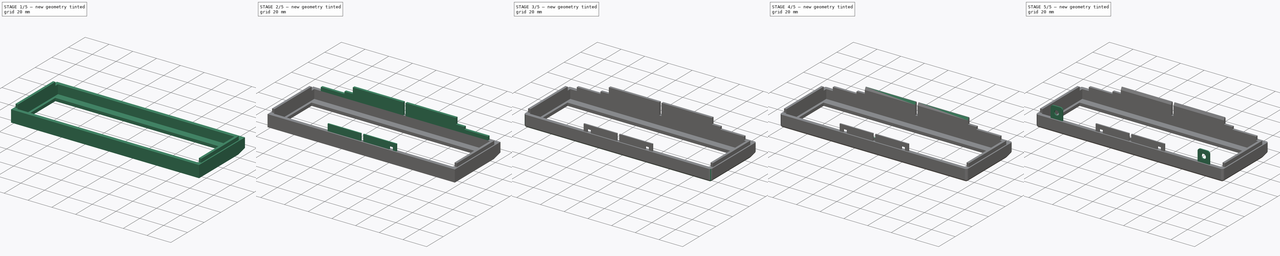
[diagram: build sequence overview — one tinted view per stage of 5, left to right]
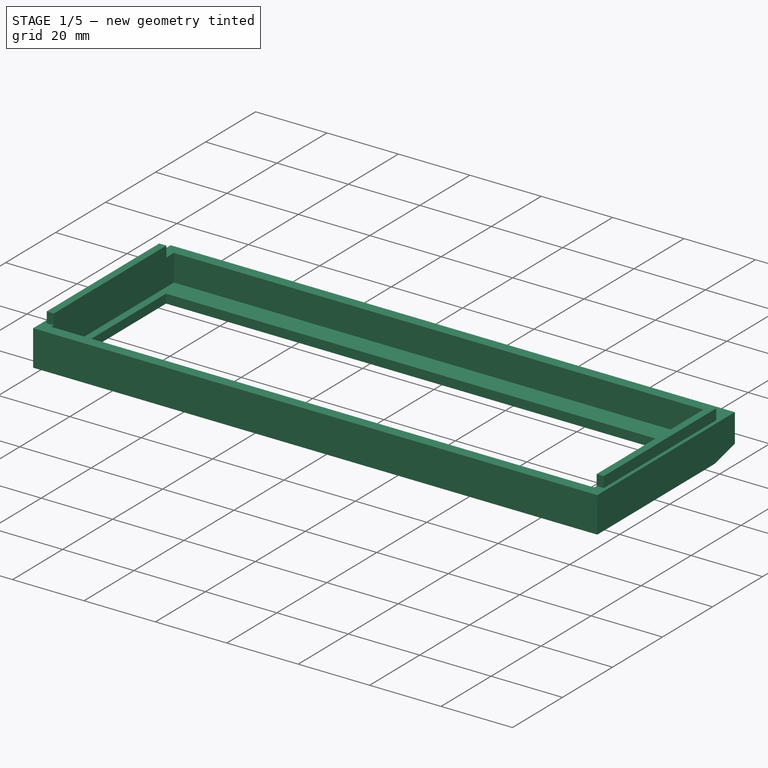
[diagram: stage 1 of 5 — iso view after this stage's code; geometry added in this stage tinted green]
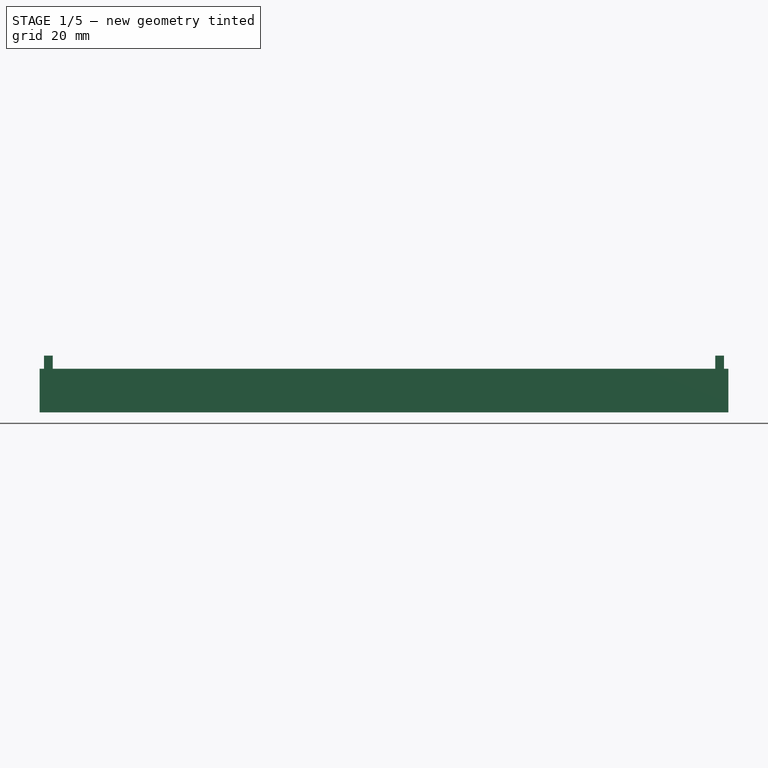
[diagram: stage 1 of 5 — front view after this stage's code; geometry added in this stage tinted green]
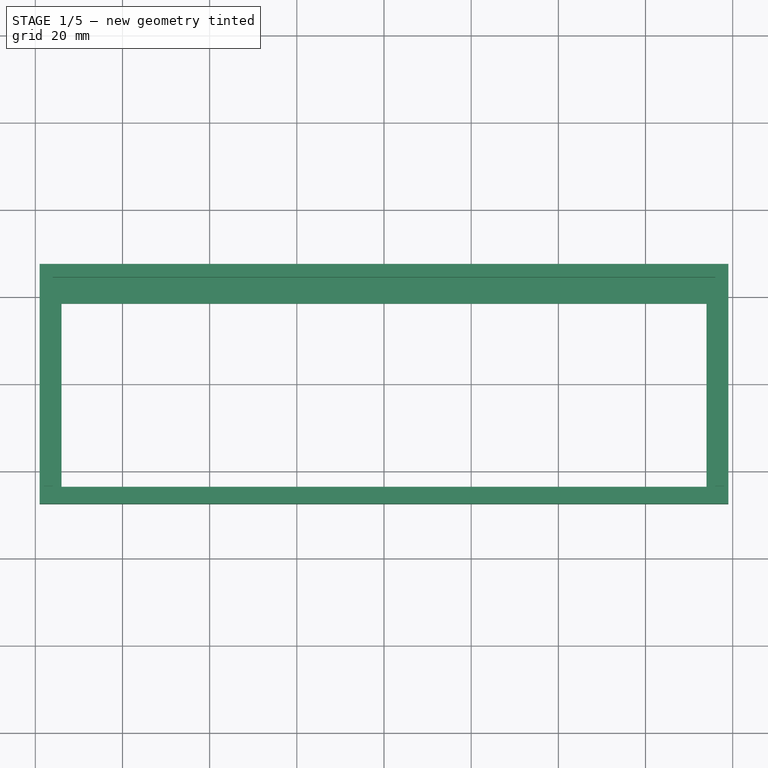
[diagram: stage 1 of 5 — top view after this stage's code; geometry added in this stage tinted green]
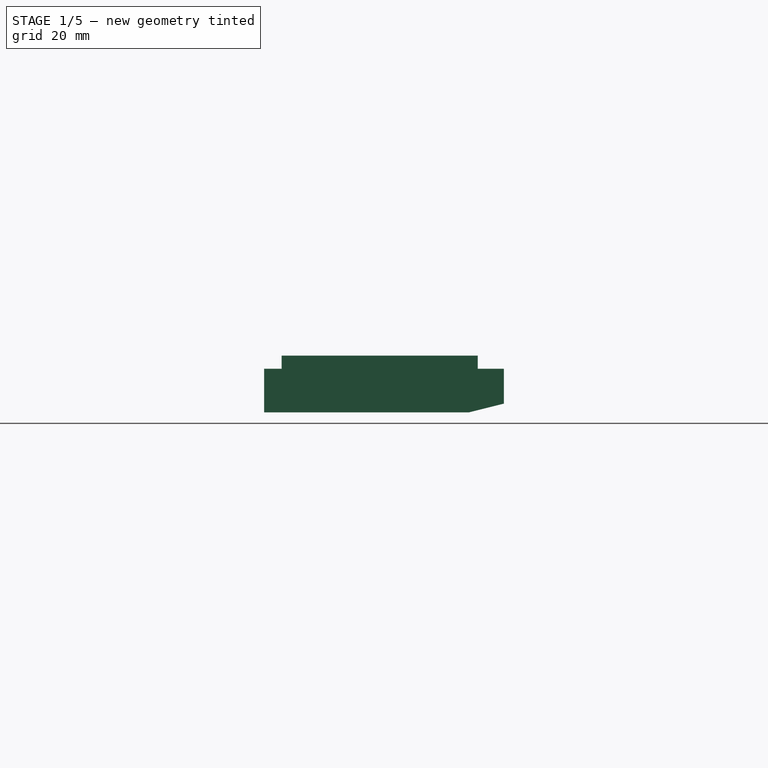
[diagram: stage 1 of 5 — right view after this stage's code; geometry added in this stage tinted green]
FCSTD DOCUMENT  (FreeCAD 1.0R39319 (Git))
Label: AppleCD 600E Bezel
License: All rights reserved
LicenseURL: http://en.wikipedia.org/wiki/All_rights_reserved
objects: PartDesign::AdditiveBox×9, PartDesign::Fillet×6, PartDesign::SubtractiveBox×5, PartDesign::SubtractiveWedge×5, PartDesign::AdditiveWedge×2, PartDesign::SubtractiveCylinder×2, Sketcher::SketchObject×1, PartDesign::Pad×1, PartDesign::Body×1
note: 93 computed .brp shape members not serialized (recipe doc carries the construction recipe); baked Part::Feature solids carry a one-line shape summary decoded from their .brp

FEATURE [Sketcher::SketchObject] Sketch
  ArcFitTolerance = 1e-06
  AttachmentSupport = -> [XY_Plane]
  FullyConstrained = true
  MakeInternals = false
  MapMode = 5
  sketch-geometry (5):
    g0: LineSegment StartX=-79 StartY=-27.5 StartZ=0 EndX=79 EndY=-27.5 EndZ=0
    g1: LineSegment StartX=79 StartY=-27.5 StartZ=0 EndX=79 EndY=27.5 EndZ=0
    g2: LineSegment StartX=79 StartY=27.5 StartZ=0 EndX=-79 EndY=27.5 EndZ=0
    g3: LineSegment StartX=-79 StartY=27.5 StartZ=0 EndX=-79 EndY=-27.5 EndZ=0
    g4: GeomPoint [constr] X=0 Y=0 Z=0
  constraints (12):
    c: Coincident(g0,g1)
    c: Coincident(g1,g2)
    c: Coincident(g2,g3)
    c: Coincident(g3,g0)
    c: Horizontal(g0)
    c: Horizontal(g2)
    c: Vertical(g1)
    c: Vertical(g3)
    c: Symmetric(g2,g0,g4)
    c: Distance(g1,g3) = 158
    c: Distance(g0,g2) = 55
    c: Coincident(g4,g-1)
FEATURE [PartDesign::Pad] Pad
  Direction = (0,0,1)
  Length = 10
  Length2 = 10
  Profile = -> Sketch
  ReferenceAxis = -> Sketch [N_Axis]
  Suppressed = false
  Type = 0
FEATURE [PartDesign::SubtractiveBox] Box
  AttacherType = Attacher::AttachEngine3D
  AttachmentOffset = pos=(-74,-23.5,-10) rot=(0,0,1;0rad)
  AttachmentSupport = -> [Pad]
  BaseFeature = -> Pad
  Height = 10
  Length = 148
  MapMode = 5
  Placement = pos=(-74,-23.5,0) rot=(0,0,1;0rad)
  Suppressed = false
  Width = 42
FEATURE [PartDesign::SubtractiveWedge] Wedge
  AttacherType = Attacher::AttachEngine3D
  AttachmentOffset = pos=(-5,43,-20) rot=(0,0,1;0rad)
  AttachmentSupport = -> [Box]
  BaseFeature = -> Box
  MapMode = 5
  Placement = pos=(-79,19.5,-10) rot=(0,0,1;0rad)
  Suppressed = false
  X2max = 158
  X2min = 0
  Xmax = 158
  Xmin = 0
  Ymax = 8
  Ymin = 0
  Z2max = 12
  Z2min = -2
  Zmax = 10
  Zmin = 0
FEATURE [PartDesign::SubtractiveBox] Box001
  AttacherType = Attacher::AttachEngine3D
  AttachmentOffset = pos=(3,-44,-7.5) rot=(0,0,1;0rad)
  AttachmentSupport = -> [Wedge]
  BaseFeature = -> Wedge
  Height = 10
  Length = 152
  MapMode = 5
  Placement = pos=(-76,-24.5,2.5) rot=(0,0,1;0rad)
  Suppressed = false
  Width = 49
FEATURE [PartDesign::AdditiveBox] Box002
  AttacherType = Attacher::AttachEngine3D
  AttachmentOffset = pos=(-2,1,0) rot=(0,0,1;0rad)
  AttachmentSupport = -> [Box001]
  BaseFeature = -> Box001
  Height = 3
  Length = 2
  MapMode = 5
  Placement = pos=(-78,-23.5,10) rot=(0,0,1;0rad)
  Suppressed = false
  Width = 45
FEATURE [PartDesign::AdditiveBox] Box003
  AttacherType = Attacher::AttachEngine3D
  AttachmentOffset = pos=(154,0,0) rot=(0,0,1;0rad)
  AttachmentSupport = -> [Box002]
  BaseFeature = -> Box002
  Height = 3
  Length = 2
  MapMode = 5
  Placement = pos=(76,-23.5,10) rot=(0,0,1;0rad)
  Suppressed = false
  Width = 45
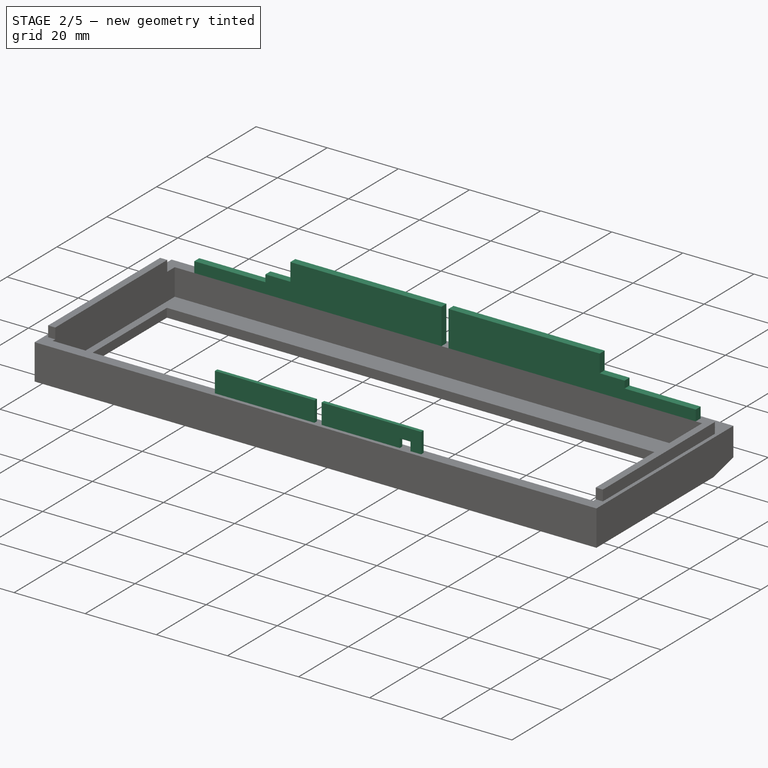
[diagram: stage 2 of 5 — iso view after this stage's code; geometry added in this stage tinted green]
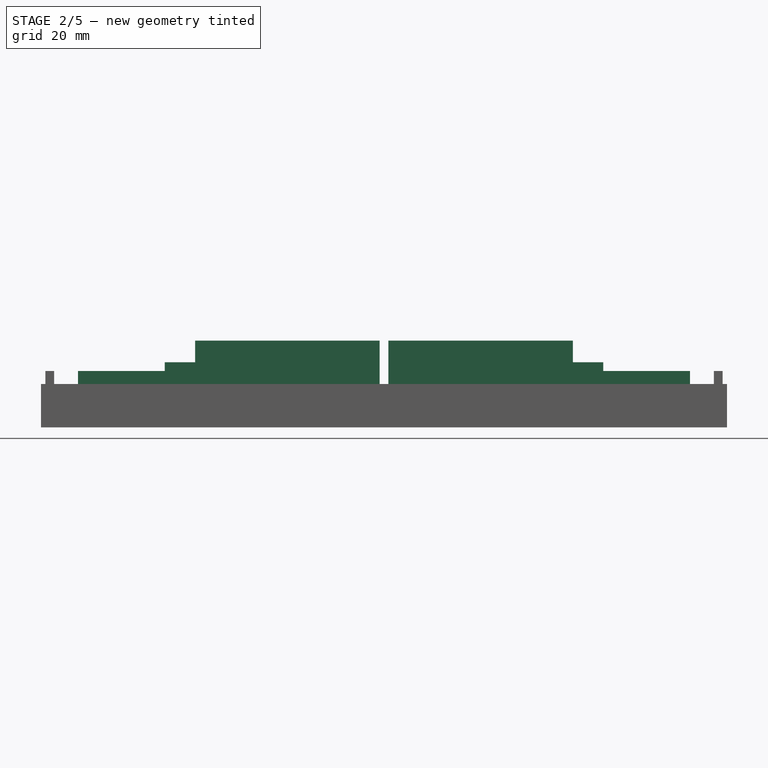
[diagram: stage 2 of 5 — front view after this stage's code; geometry added in this stage tinted green]
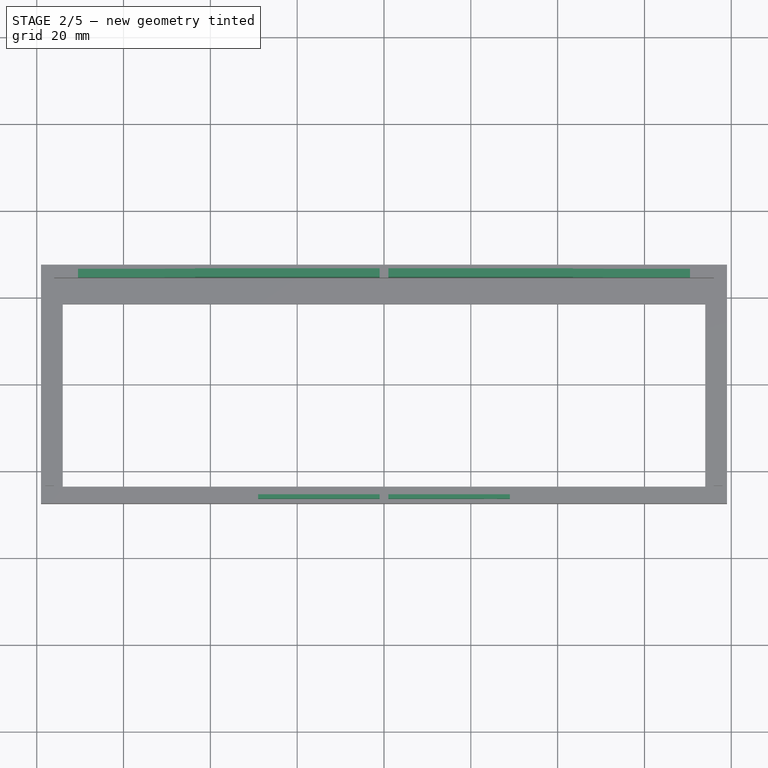
[diagram: stage 2 of 5 — top view after this stage's code; geometry added in this stage tinted green]
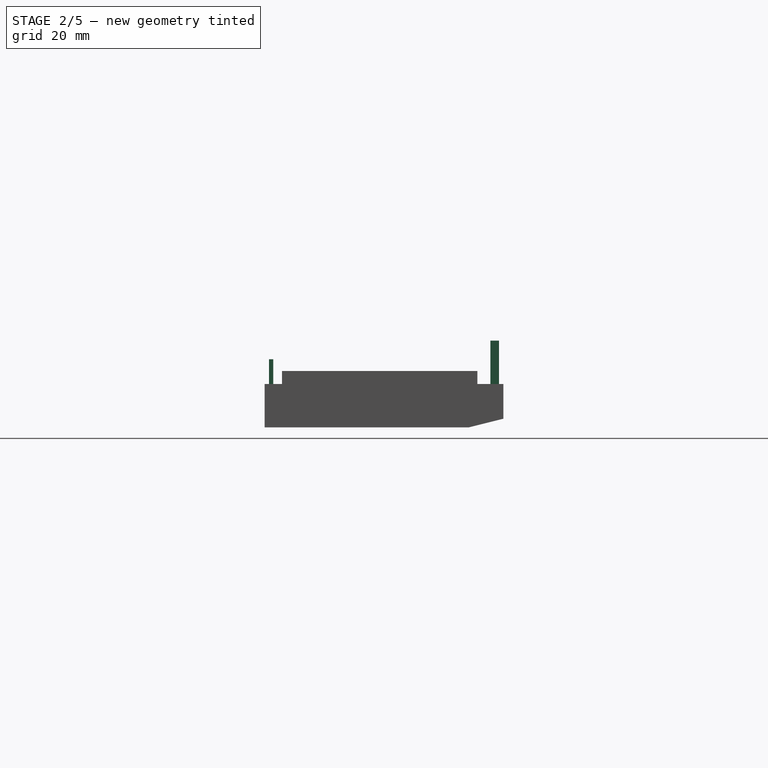
[diagram: stage 2 of 5 — right view after this stage's code; geometry added in this stage tinted green]
FEATURE [PartDesign::AdditiveBox] Box004
  AttacherType = Attacher::AttachEngine3D
  AttachmentOffset = pos=(-146.5,48,0) rot=(0,0,1;0rad)
  AttachmentSupport = -> [Box003]
  BaseFeature = -> Box003
  Height = 3
  Length = 141
  MapMode = 5
  Placement = pos=(-70.5,24.5,10) rot=(0,0,1;0rad)
  Suppressed = false
  Width = 2
FEATURE [PartDesign::AdditiveBox] Box005
  AttacherType = Attacher::AttachEngine3D
  AttachmentOffset = pos=(20,0,0) rot=(0,0,1;0rad)
  AttachmentSupport = -> [Box004]
  BaseFeature = -> Box004
  Height = 2
  Length = 101
  MapMode = 5
  Placement = pos=(-50.5,24.5,13) rot=(0,0,1;0rad)
  Suppressed = false
  Width = 2
FEATURE [PartDesign::AdditiveBox] Box006
  AttacherType = Attacher::AttachEngine3D
  AttachmentOffset = pos=(7,0,0) rot=(0,0,1;0rad)
  AttachmentSupport = -> [Box005]
  BaseFeature = -> Box005
  Height = 5
  Length = 87
  MapMode = 5
  Placement = pos=(-43.5,24.5,15) rot=(0,0,1;0rad)
  Suppressed = false
  Width = 2
FEATURE [PartDesign::AdditiveBox] Box007
  AttacherType = Attacher::AttachEngine3D
  AttachmentOffset = pos=(14.5,-51,0) rot=(0,0,1;0rad)
  AttachmentSupport = -> [Box006]
  BaseFeature = -> Box006
  Height = 5.7
  Length = 58
  MapMode = 5
  Placement = pos=(-29,-26.5,10) rot=(0,0,1;0rad)
  Suppressed = false
  Width = 1
FEATURE [PartDesign::SubtractiveBox] Box008
  AttacherType = Attacher::AttachEngine3D
  AttachmentOffset = pos=(28,-1,-10) rot=(0,0,1;0rad)
  AttachmentSupport = -> [Box007]
  BaseFeature = -> Box007
  Height = 10
  Length = 2
  MapMode = 5
  Placement = pos=(-1,-27.5,10) rot=(0,0,1;0rad)
  Suppressed = false
  Width = 58
FEATURE [PartDesign::SubtractiveBox] Box009
  AttacherType = Attacher::AttachEngine3D
  AttachmentOffset = pos=(24,0,-4) rot=(0,0,1;0rad)
  AttachmentSupport = -> [Box008]
  BaseFeature = -> Box008
  Height = 10
  Length = 3
  MapMode = 5
  Placement = pos=(23,-22.5,10) rot=(1,0,0;1.5708rad)
  Suppressed = false
  Width = 2.5
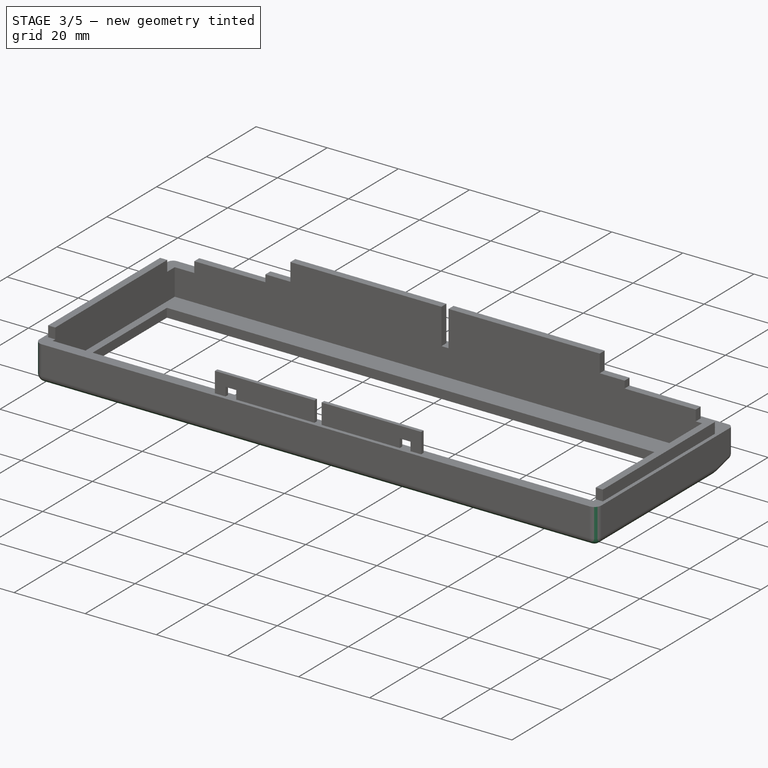
[diagram: stage 3 of 5 — iso view after this stage's code; geometry added in this stage tinted green]
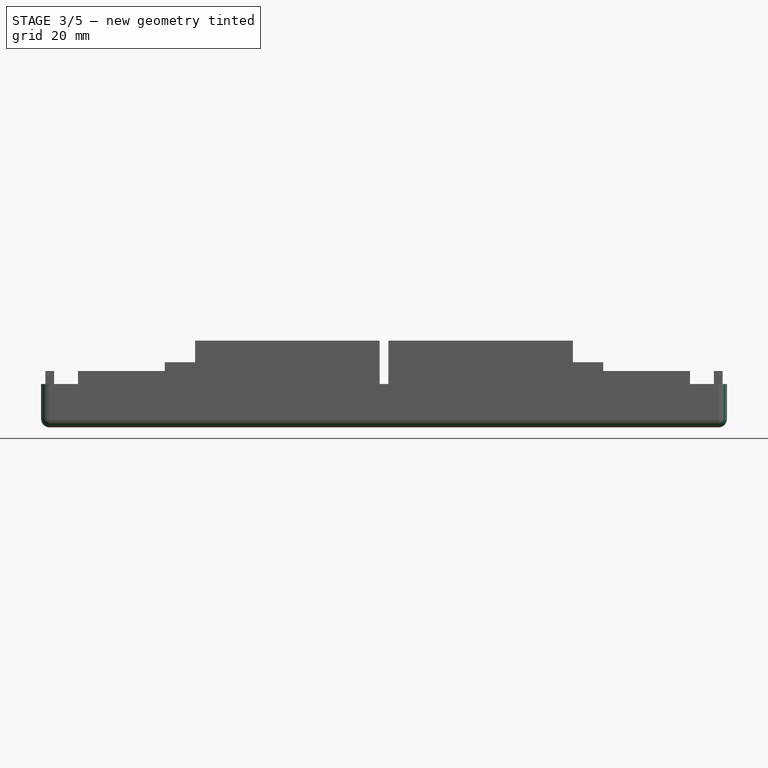
[diagram: stage 3 of 5 — front view after this stage's code; geometry added in this stage tinted green]
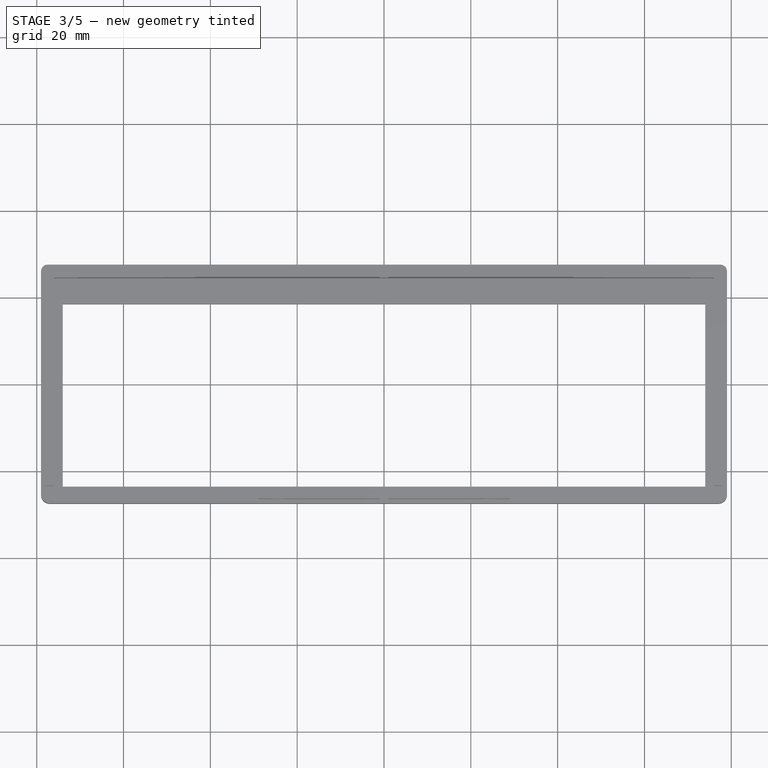
[diagram: stage 3 of 5 — top view after this stage's code; geometry added in this stage tinted green]
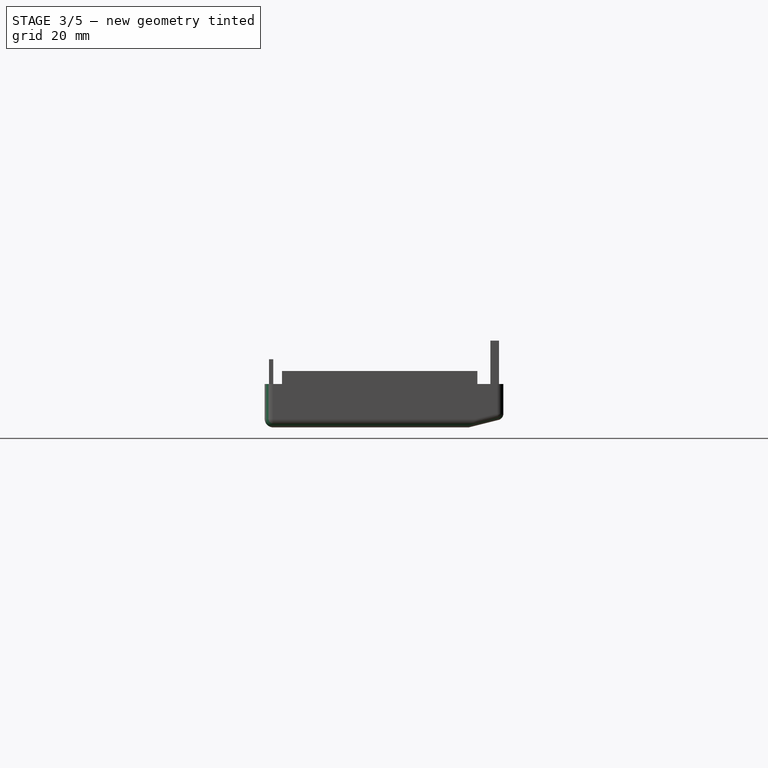
[diagram: stage 3 of 5 — right view after this stage's code; geometry added in this stage tinted green]
FEATURE [PartDesign::SubtractiveBox] Box010
  AttacherType = Attacher::AttachEngine3D
  AttachmentOffset = pos=(-49,0,-3) rot=(0,0,1;0rad)
  AttachmentSupport = -> [Box009]
  BaseFeature = -> Box009
  Height = 10
  Length = 3
  MapMode = 5
  Placement = pos=(-26,-23.5,10) rot=(1,0,0;1.5708rad)
  Suppressed = false
  Width = 2.5
FEATURE [PartDesign::Fillet] Fillet
  Base = -> Box010 [Edge3]
  BaseFeature = -> Box010
  Placement = pos=(-26,-23.5,10) rot=(1,0,0;1.5708rad)
  Radius = 2
  SupportTransform = false
  Suppressed = false
  UseAllEdges = false
FEATURE [PartDesign::Fillet] Fillet001
  Base = -> Fillet [Edge11]
  BaseFeature = -> Fillet
  Placement = pos=(-26,-23.5,10) rot=(1,0,0;1.5708rad)
  Radius = 2
  SupportTransform = false
  Suppressed = false
  UseAllEdges = false
FEATURE [PartDesign::Fillet] Fillet002
  Base = -> Fillet001 [Edge17]
  BaseFeature = -> Fillet001
  Placement = pos=(-26,-23.5,10) rot=(1,0,0;1.5708rad)
  Radius = 2
  SupportTransform = false
  Suppressed = false
  UseAllEdges = false
FEATURE [PartDesign::Fillet] Fillet003
  Base = -> Fillet002 [Edge78]
  BaseFeature = -> Fillet002
  Placement = pos=(-26,-23.5,10) rot=(1,0,0;1.5708rad)
  Radius = 1.5
  SupportTransform = false
  Suppressed = false
  UseAllEdges = false
FEATURE [PartDesign::Fillet] Fillet004
  Base = -> Fillet003 [Edge1,Edge2]
  BaseFeature = -> Fillet003
  Placement = pos=(-26,-23.5,10) rot=(1,0,0;1.5708rad)
  Radius = 1.5
  SupportTransform = false
  Suppressed = false
  UseAllEdges = false
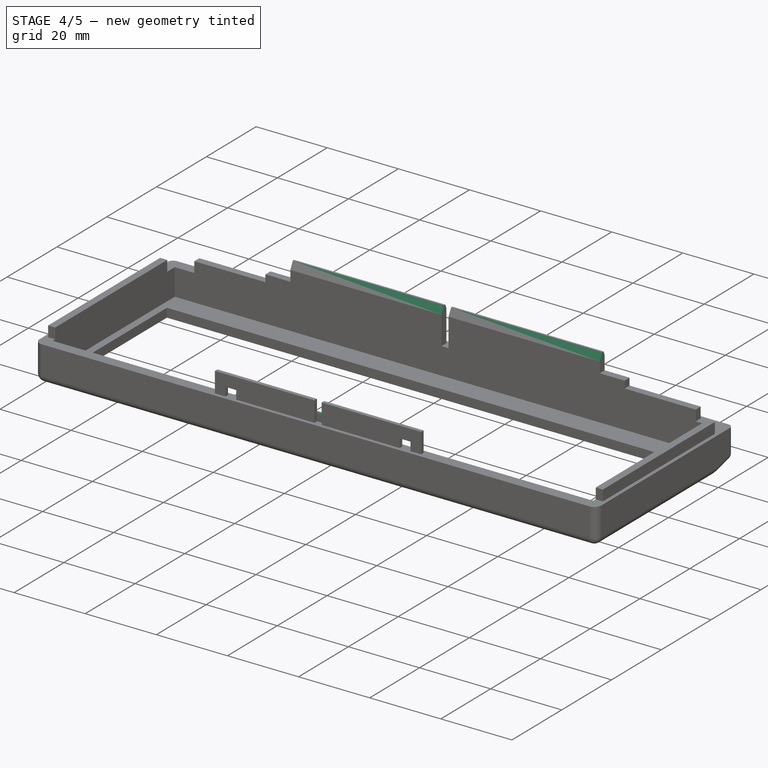
[diagram: stage 4 of 5 — iso view after this stage's code; geometry added in this stage tinted green]
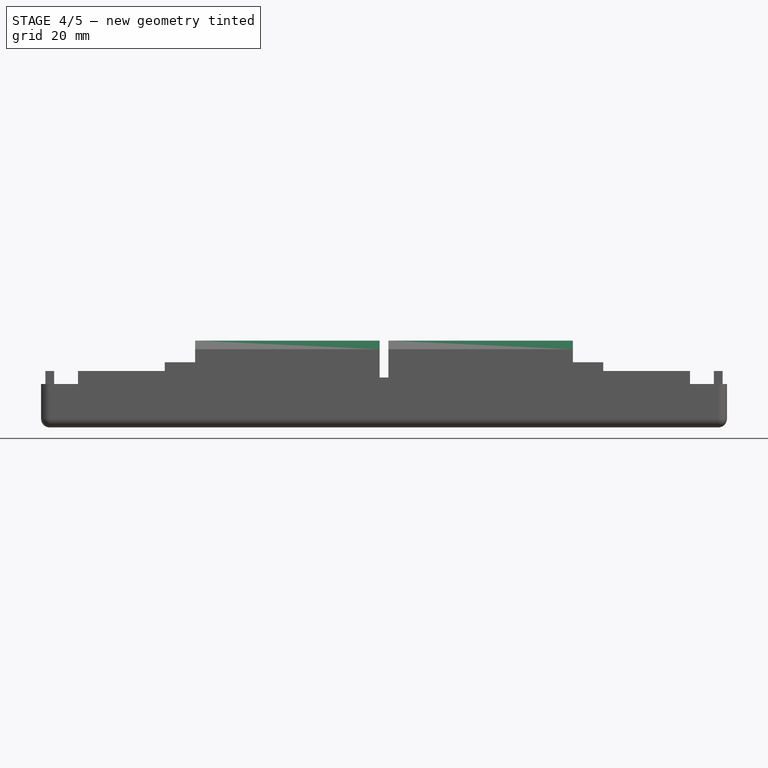
[diagram: stage 4 of 5 — front view after this stage's code; geometry added in this stage tinted green]
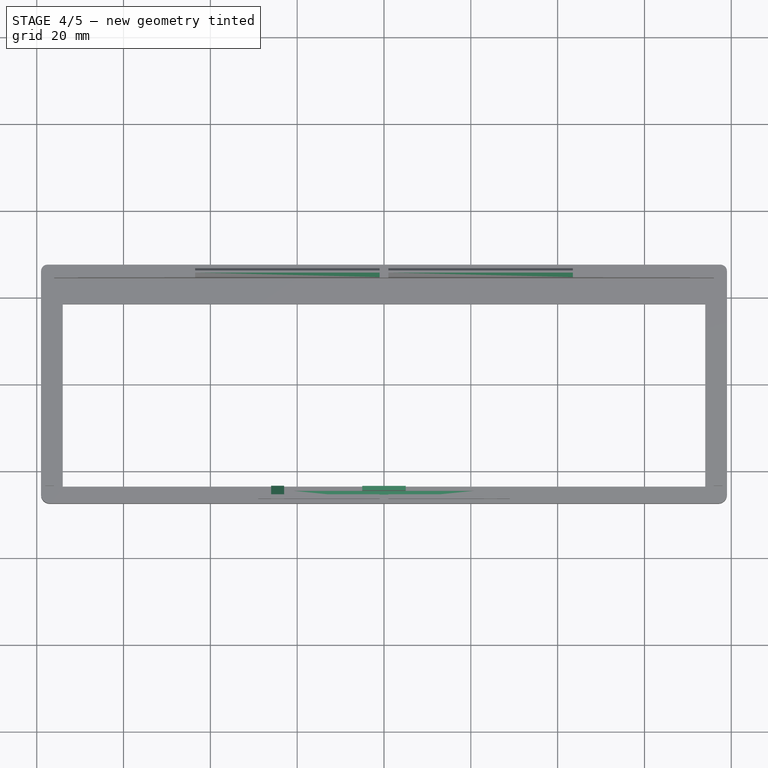
[diagram: stage 4 of 5 — top view after this stage's code; geometry added in this stage tinted green]
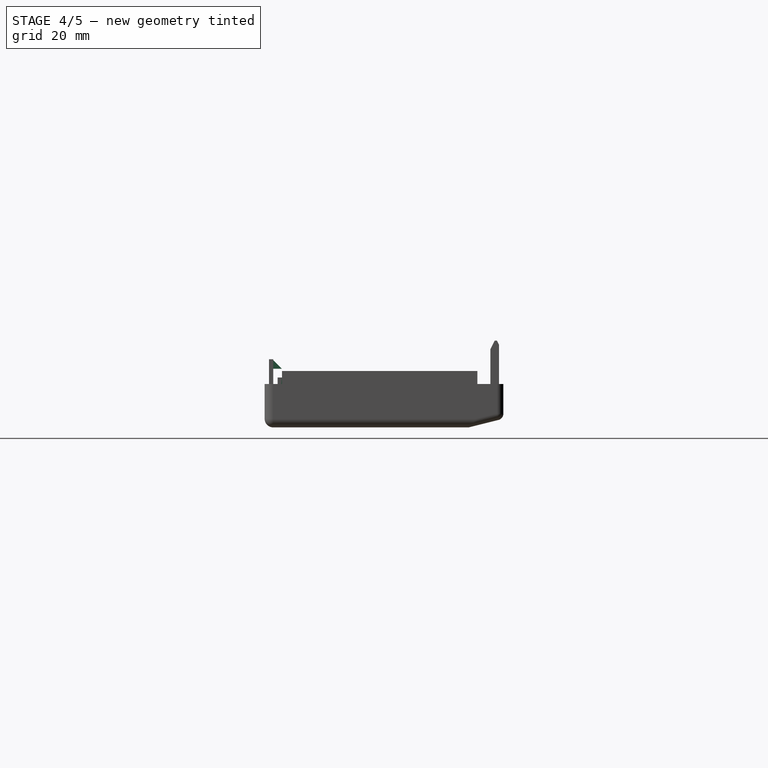
[diagram: stage 4 of 5 — right view after this stage's code; geometry added in this stage tinted green]
FEATURE [PartDesign::SubtractiveWedge] Wedge001
  AttacherType = Attacher::AttachEngine3D
  AttachmentOffset = pos=(-17.5,8,0) rot=(0,0,1;0rad)
  AttachmentSupport = -> [Fillet004]
  BaseFeature = -> Fillet004
  MapMode = 5
  Placement = pos=(-43.5,24.5,18) rot=(1,0,0;1.5708rad)
  Suppressed = false
  X2max = 87
  X2min = 0
  Xmax = 87
  Xmin = 0
  Ymax = 2
  Ymin = 0
  Z2max = 8
  Z2min = -1
  Zmax = 10
  Zmin = 0
FEATURE [PartDesign::SubtractiveWedge] Wedge002
  AttacherType = Attacher::AttachEngine3D
  AttachmentOffset = pos=(0,-2,-0.5) rot=(0,0,1;0rad)
  AttachmentSupport = -> [Wedge001]
  BaseFeature = -> Wedge001
  MapMode = 5
  Placement = pos=(-43.5,26,20) rot=(-1,0,0;1.5708rad)
  Suppressed = false
  X2max = 87
  X2min = 0
  Xmax = 87
  Xmin = 0
  Ymax = 1
  Ymin = 0
  Z2max = 8
  Z2min = 0.5
  Zmax = 10
  Zmin = 0
FEATURE [PartDesign::SubtractiveWedge] Wedge003
  AttacherType = Attacher::AttachEngine3D
  AttachmentOffset = pos=(21.5,18,-1) rot=(1,0,0;1.5708rad)
  AttachmentSupport = -> [Wedge002]
  BaseFeature = -> Wedge002
  MapMode = 5
  Placement = pos=(-22,-25.5,2) rot=(0,0,1;0rad)
  Suppressed = false
  X2max = 22
  X2min = 0
  Xmax = 22
  Xmin = 10
  Ymax = 1
  Ymin = 0
  Z2max = 8
  Z2min = 0
  Zmax = 8
  Zmin = 0
FEATURE [PartDesign::SubtractiveWedge] Wedge004
  AttacherType = Attacher::AttachEngine3D
  AttachmentOffset = pos=(-44,8,-1) rot=(1,0,0;1.5708rad)
  AttachmentSupport = -> [Wedge003]
  BaseFeature = -> Wedge003
  MapMode = 5
  Placement = pos=(22,-25.5,10) rot=(0,1,0;3.14159rad)
  Suppressed = false
  X2max = 22
  X2min = 0
  Xmax = 22
  Xmin = 10
  Ymax = 1
  Ymin = 0
  Z2max = 8
  Z2min = 0
  Zmax = 8
  Zmin = 0
FEATURE [PartDesign::AdditiveBox] Box011
  AttacherType = Attacher::AttachEngine3D
  AttachmentOffset = pos=(17,-2,0) rot=(0,0,1;0rad)
  AttachmentSupport = -> [Wedge004]
  BaseFeature = -> Wedge004
  Height = 9
  Length = 10
  MapMode = 5
  Placement = pos=(5,-23.5,2.5) rot=(0,0,1;3.14159rad)
  Suppressed = false
  Width = 1
FEATURE [PartDesign::AdditiveWedge] Wedge005
  AttacherType = Attacher::AttachEngine3D
  AttachmentOffset = pos=(28,11,0) rot=(0,0,1;0rad)
  AttachmentSupport = -> [Box011]
  BaseFeature = -> Box011
  MapMode = 5
  Placement = pos=(-23,-25.5,13.5) rot=(0,0.707107,0.707107;3.14159rad)
  Refine = true
  Suppressed = false
  X2max = 3
  X2min = 0
  Xmax = 3
  Xmin = 0
  Ymax = 2
  Ymin = 0
  Z2max = 0
  Z2min = 0
  Zmax = 2
  Zmin = 0
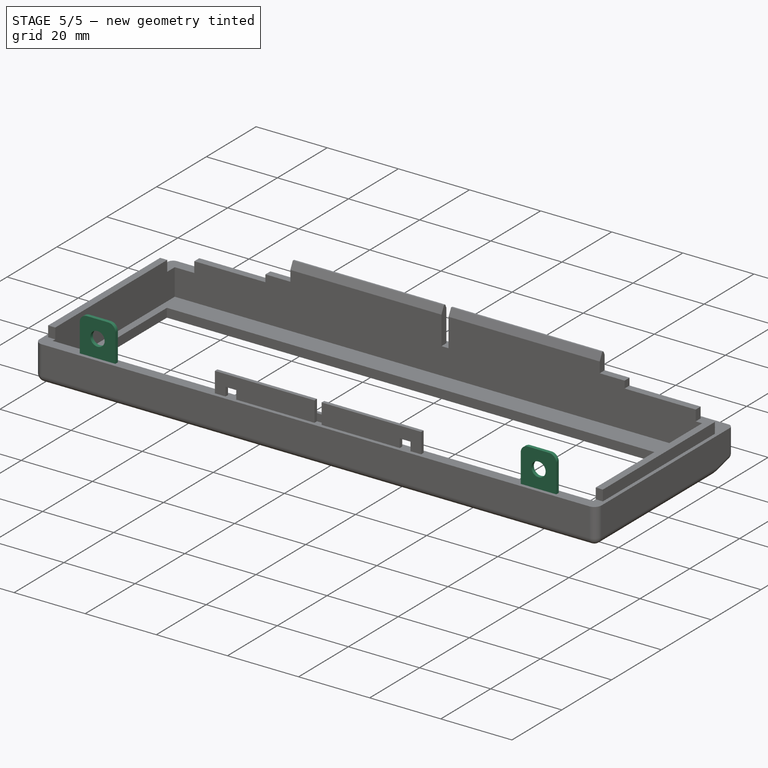
[diagram: stage 5 of 5 — iso view after this stage's code; geometry added in this stage tinted green]
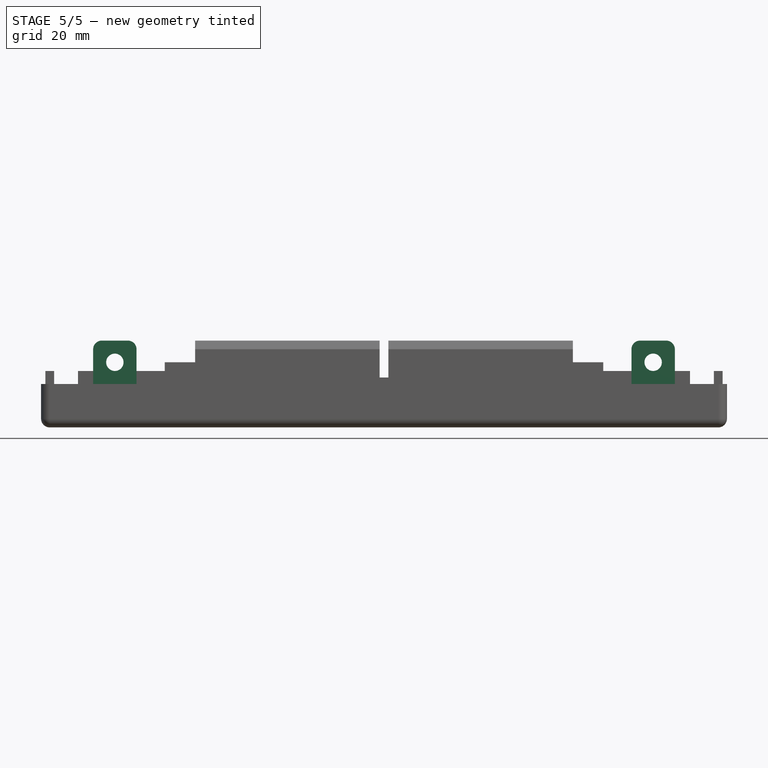
[diagram: stage 5 of 5 — front view after this stage's code; geometry added in this stage tinted green]
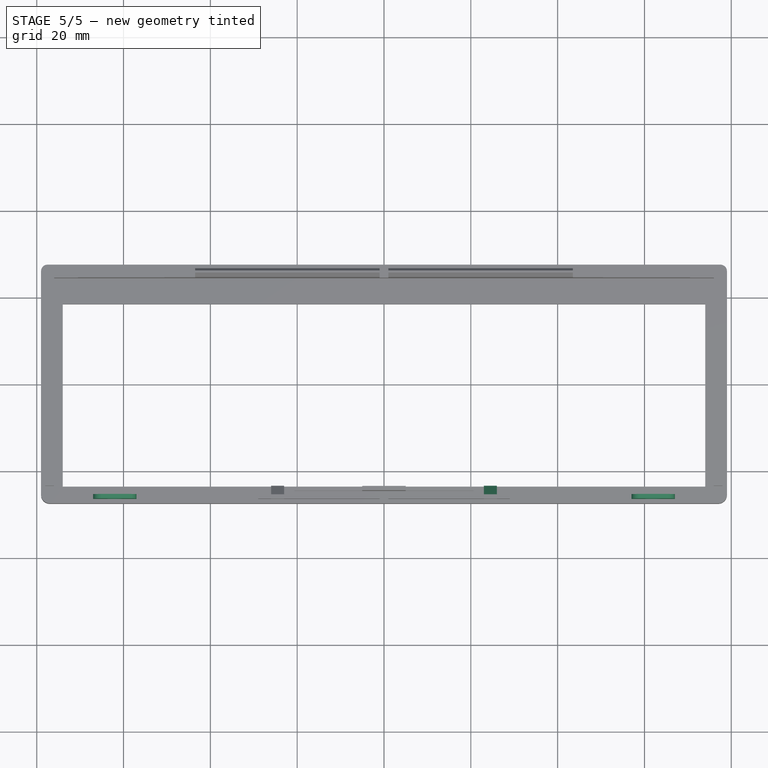
[diagram: stage 5 of 5 — top view after this stage's code; geometry added in this stage tinted green]
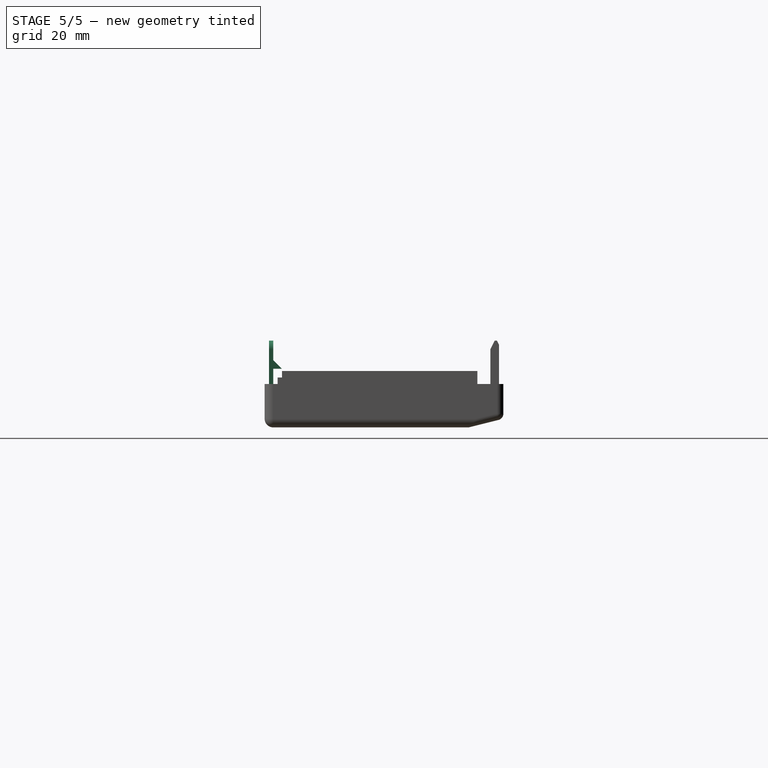
[diagram: stage 5 of 5 — right view after this stage's code; geometry added in this stage tinted green]
FEATURE [PartDesign::AdditiveWedge] Wedge006
  AttacherType = Attacher::AttachEngine3D
  AttachmentOffset = pos=(-49,0,0) rot=(0,0,1;0rad)
  AttachmentSupport = -> [Wedge005]
  BaseFeature = -> Wedge005
  MapMode = 5
  Placement = pos=(26,-25.5,13.5) rot=(0,0.707107,0.707107;3.14159rad)
  Refine = true
  Suppressed = false
  X2max = 3
  X2min = 0
  Xmax = 3
  Xmin = 0
  Ymax = 2
  Ymin = 0
  Z2max = 0
  Z2min = 0
  Zmax = 2
  Zmin = 0
FEATURE [PartDesign::AdditiveBox] Box012
  AttacherType = Attacher::AttachEngine3D
  AttachmentOffset = pos=(-93,-1,0) rot=(0,0,1;0rad)
  AttachmentSupport = -> [Wedge006]
  BaseFeature = -> Wedge006
  Height = 10
  Length = 10
  MapMode = 5
  Placement = pos=(-67,-26.5,10) rot=(0,0,1;0rad)
  Suppressed = false
  Width = 1
FEATURE [PartDesign::AdditiveBox] Box013
  AttacherType = Attacher::AttachEngine3D
  AttachmentOffset = pos=(124,0,0) rot=(0,0,1;0rad)
  AttachmentSupport = -> [Box012]
  BaseFeature = -> Box012
  Height = 10
  Length = 10
  MapMode = 5
  Placement = pos=(57,-26.5,10) rot=(0,0,1;0rad)
  Suppressed = false
  Width = 1
FEATURE [PartDesign::SubtractiveCylinder] Cylinder
  Angle = 360
  AttacherType = Attacher::AttachEngine3D
  AttachmentOffset = pos=(-119,5,-5) rot=(0,0,1;0rad)
  AttachmentSupport = -> [Box013]
  BaseFeature = -> Box013
  FirstAngle = 0
  Height = 10
  MapMode = 5
  Placement = pos=(-62,-21.5,15) rot=(1,0,0;1.5708rad)
  Radius = 2
  SecondAngle = 0
  Suppressed = false
FEATURE [PartDesign::SubtractiveCylinder] Cylinder001
  Angle = 360
  AttacherType = Attacher::AttachEngine3D
  AttachmentOffset = pos=(124,0,-5) rot=(0,0,1;0rad)
  AttachmentSupport = -> [Cylinder]
  BaseFeature = -> Cylinder
  FirstAngle = 0
  Height = 10
  MapMode = 5
  Placement = pos=(62,-21.5,15) rot=(1,0,0;1.5708rad)
  Radius = 2
  SecondAngle = 0
  Suppressed = false
FEATURE [PartDesign::Fillet] Fillet005
  Base = -> Cylinder001 [Edge170,Edge172,Edge127,Edge122]
  BaseFeature = -> Cylinder001
  Placement = pos=(62,-21.5,15) rot=(1,0,0;1.5708rad)
  Radius = 2
  SupportTransform = false
  Suppressed = false
  UseAllEdges = false
FEATURE [PartDesign::Body] Body
  AllowCompound = false
  Group = -> [Sketch,Pad,Box,Wedge,Box001,Box002,Box003,Box004,Box005,Box006,Box007,Box008,Box009,Box010,Fillet,Fillet001,Fillet002,Fillet003,Fillet004,Wedge001,Wedge002,Wedge003,Wedge004,Box011,Wedge005,Wedge006,Box012,Box013,Cylinder,Cylinder001,Fillet005]
  Origin = -> Origin
  Tip = -> Fillet005
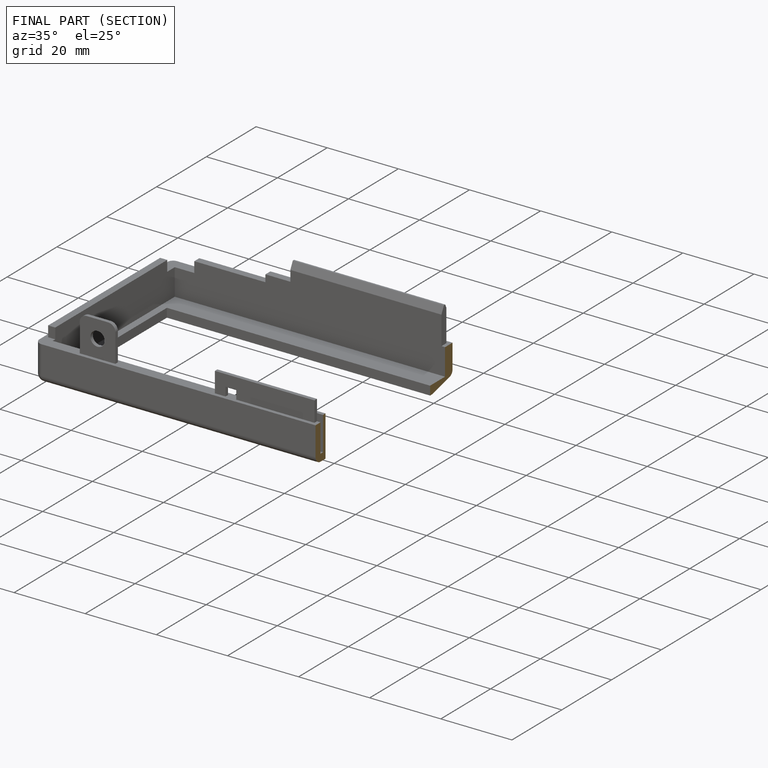
[diagram: finished part — half-section view (interior)]
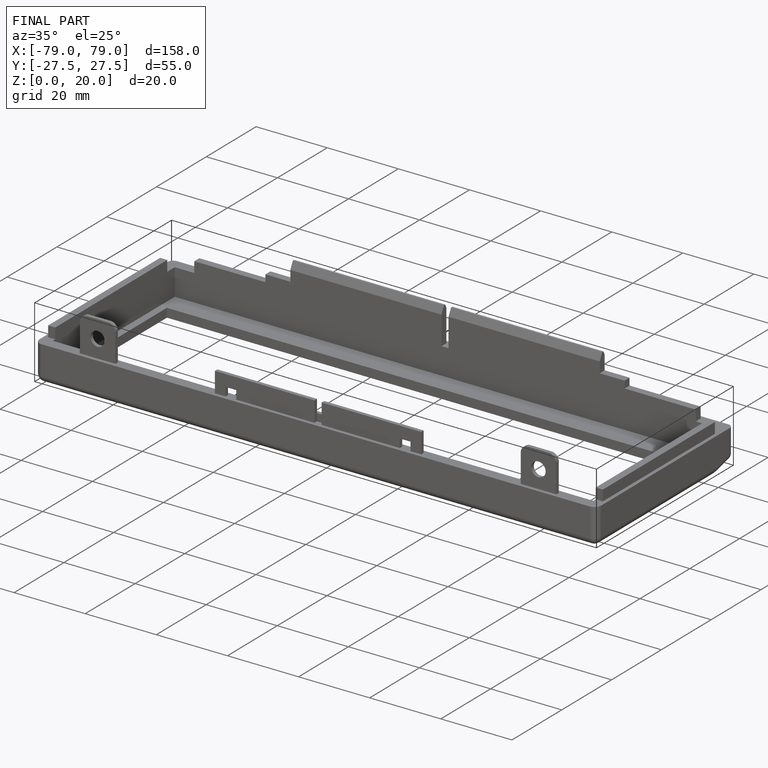
[diagram: finished part — iso view with bounding-box wireframe]
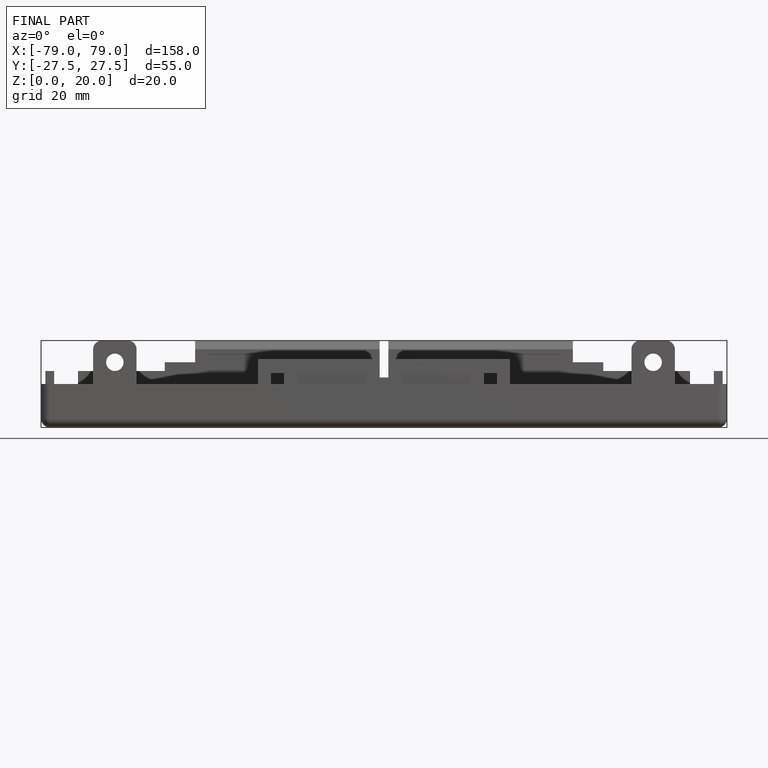
[diagram: finished part — front view with bounding-box wireframe]
